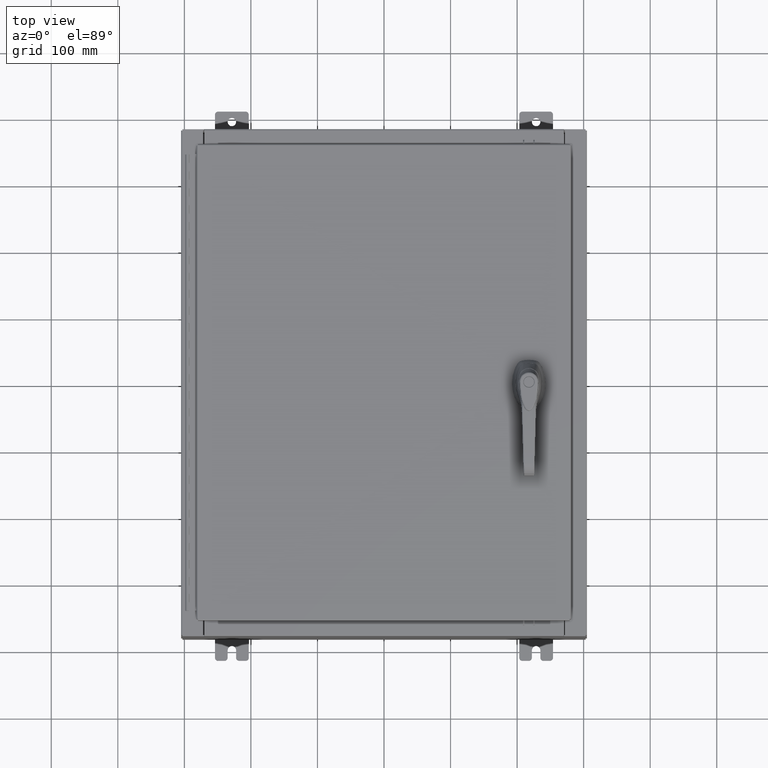
[diagram: clean part render]
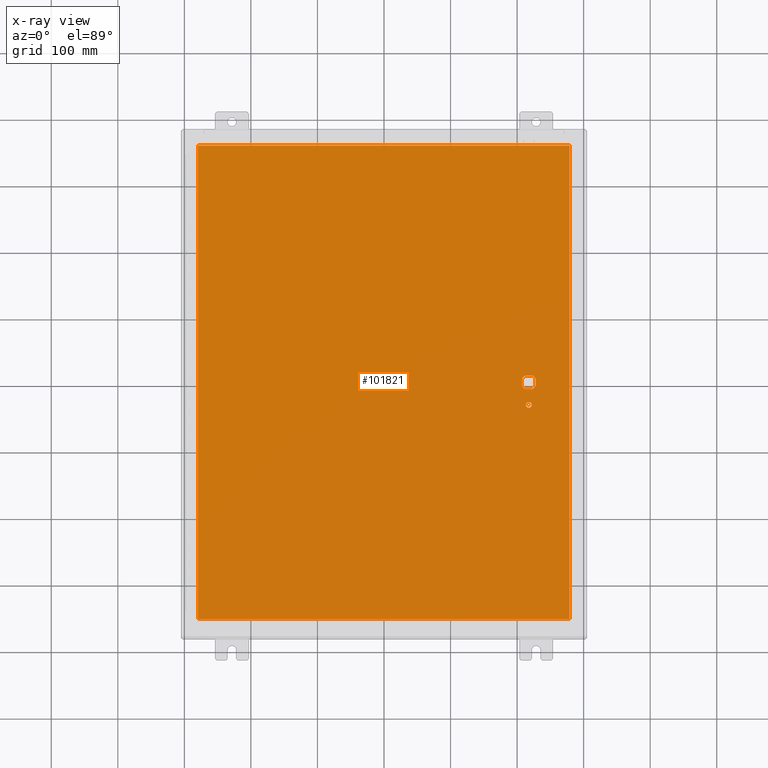
[diagram: x-ray — body ghosted, one internal face saturated and labeled with its STEP entity id]
A machine part, top view, then the same camera in x-ray: the body is ghosted and one INTERNAL B-rep face — a face not visible from any outside direction — is saturated and labeled: STEP entity #101821.
In plain terms, the highlighted planar face has unit normal (0, 0, -1).
Its self-contained STEP definition (entity closure, byte-faithful):
#960 = VERTEX_POINT ( 'NONE', #18982 ) ;
#1404 = VECTOR ( 'NONE', #45254, 39.37007874015748100 ) ;
#1831 = ORIENTED_EDGE ( 'NONE', *, *, #83583, .T. ) ;
#3117 = LINE ( 'NONE', #37283, #73392 ) ;
#4116 = VERTEX_POINT ( 'NONE', #100750 ) ;
#5391 = AXIS2_PLACEMENT_3D ( 'NONE', #76964, #12888, #95352 ) ;
#5726 = CIRCLE ( 'NONE', #71206, 0.4499999999999156900 ) ;
#5945 = CIRCLE ( 'NONE', #49661, 0.4499999999999156900 ) ;
#6752 = LINE ( 'NONE', #21977, #74194 ) ;
#7013 = VECTOR ( 'NONE', #39008, 39.37007874015748100 ) ;
#7109 = AXIS2_PLACEMENT_3D ( 'NONE', #14177, #78276, #23422 ) ;
#8033 = VECTOR ( 'NONE', #34647, 39.37007874015748100 ) ;
#8236 = CARTESIAN_POINT ( 'NONE',  ( -10.99029999999999600, -14.00629999999999800, -0.07470000000000019700 ) ) ;
#9836 = DIRECTION ( 'NONE',  ( 2.728745808672812900E-015, -1.000000000000000000, 0.0000000000000000000 ) ) ;
#10330 = VERTEX_POINT ( 'NONE', #104734 ) ;
#12888 = DIRECTION ( 'NONE',  ( 0.0000000000000000000, 0.0000000000000000000, -1.000000000000000000 ) ) ;
#13919 = CARTESIAN_POINT ( 'NONE',  ( 8.577999999999999400, -1.338000000000000100, -0.07470000000000003000 ) ) ;
#14031 = CARTESIAN_POINT ( 'NONE',  ( 8.749500000000001200, -1.338000000000000100, -0.07470000000000003000 ) ) ;
#14177 = CARTESIAN_POINT ( 'NONE',  ( 8.577999999999999400, 0.0000000000000000000, -0.07470000000000003000 ) ) ;
#16042 = CARTESIAN_POINT ( 'NONE',  ( 8.778227370756310300, -0.4029999999999252000, -0.07470000000000003000 ) ) ;
#16356 = DIRECTION ( 'NONE',  ( -0.0000000000000000000, -0.0000000000000000000, 1.000000000000000000 ) ) ;
#17425 = ORIENTED_EDGE ( 'NONE', *, *, #77079, .T. ) ;
#17771 = EDGE_CURVE ( 'NONE', #10330, #960, #3117, .T. ) ;
#18070 = ORIENTED_EDGE ( 'NONE', *, *, #55538, .T. ) ;
#18982 = CARTESIAN_POINT ( 'NONE',  ( 8.980999999999925300, -0.2002273707563075900, -0.07470000000000003000 ) ) ;
#19429 = ORIENTED_EDGE ( 'NONE', *, *, #17771, .F. ) ;
#19517 = VERTEX_POINT ( 'NONE', #60123 ) ;
#20492 = AXIS2_PLACEMENT_3D ( 'NONE', #96645, #41920, #105854 ) ;
#21496 = DIRECTION ( 'NONE',  ( -0.0000000000000000000, -0.0000000000000000000, 1.000000000000000000 ) ) ;
#21977 = CARTESIAN_POINT ( 'NONE',  ( 0.0000000000000000000, 0.4029999999999252000, -0.07470000000000003000 ) ) ;
#22264 = ORIENTED_EDGE ( 'NONE', *, *, #68138, .T. ) ;
#22397 = AXIS2_PLACEMENT_3D ( 'NONE', #76351, #21496, #85575 ) ;
#22545 = ORIENTED_EDGE ( 'NONE', *, *, #43119, .T. ) ;
#23167 = DIRECTION ( 'NONE',  ( -1.000000000000000000, 0.0000000000000000000, 0.0000000000000000000 ) ) ;
#23422 = DIRECTION ( 'NONE',  ( -1.000000000000000000, 0.0000000000000000000, 0.0000000000000000000 ) ) ;
#24419 = ORIENTED_EDGE ( 'NONE', *, *, #81952, .T. ) ;
#24606 = CARTESIAN_POINT ( 'NONE',  ( 8.175000000000073500, 0.0000000000000000000, -0.07470000000000003000 ) ) ;
#25724 = LINE ( 'NONE', #8236, #1404 ) ;
#25967 = ORIENTED_EDGE ( 'NONE', *, *, #112929, .F. ) ;
#26627 = EDGE_CURVE ( 'NONE', #84531, #4116, #59456, .T. ) ;
#27611 = AXIS2_PLACEMENT_3D ( 'NONE', #13919, #78031, #23167 ) ;
#29296 = FACE_OUTER_BOUND ( 'NONE', #66803, .T. ) ;
#30380 = CARTESIAN_POINT ( 'NONE',  ( -10.99030000000000000, 14.00630000000000100, -0.07470000000000019700 ) ) ;
#31177 = CARTESIAN_POINT ( 'NONE',  ( 10.99030000000000000, -14.00629999999999800, -0.07470000000000000300 ) ) ;
#31347 = PLANE ( 'NONE',  #5391 ) ;
#33371 = CARTESIAN_POINT ( 'NONE',  ( 8.577999999999999400, 0.0000000000000000000, -0.07470000000000003000 ) ) ;
#34647 = DIRECTION ( 'NONE',  ( 1.000000000000000000, 0.0000000000000000000, 0.0000000000000000000 ) ) ;
#34923 = DIRECTION ( 'NONE',  ( 0.0000000000000000000, 1.000000000000000000, 0.0000000000000000000 ) ) ;
#37283 = CARTESIAN_POINT ( 'NONE',  ( 8.980999999999925300, 2.450686610769032800E-014, -0.07470000000000003000 ) ) ;
#39008 = DIRECTION ( 'NONE',  ( -1.000000000000000000, -0.0000000000000000000, -0.0000000000000000000 ) ) ;
#40875 = LINE ( 'NONE', #98914, #83828 ) ;
#41128 = CARTESIAN_POINT ( 'NONE',  ( -10.99030000000000000, 14.00629999999999800, -0.07470000000000000300 ) ) ;
#41920 = DIRECTION ( 'NONE',  ( -0.0000000000000000000, -0.0000000000000000000, 1.000000000000000000 ) ) ;
#42654 = DIRECTION ( 'NONE',  ( -1.000000000000000000, 0.0000000000000000000, 0.0000000000000000000 ) ) ;
#43119 = EDGE_CURVE ( 'NONE', #85819, #62093, #84080, .T. ) ;
#45254 = DIRECTION ( 'NONE',  ( 1.000000000000000000, -0.0000000000000000000, -0.0000000000000000000 ) ) ;
#46235 = LINE ( 'NONE', #30380, #49072 ) ;
#49072 = VECTOR ( 'NONE', #85221, 39.37007874015748100 ) ;
#49323 = VERTEX_POINT ( 'NONE', #69628 ) ;
#49661 = AXIS2_PLACEMENT_3D ( 'NONE', #71309, #16356, #80492 ) ;
#51807 = VERTEX_POINT ( 'NONE', #31177 ) ;
#53667 = FACE_BOUND ( 'NONE', #57179, .T. ) ;
#55486 = ORIENTED_EDGE ( 'NONE', *, *, #26627, .T. ) ;
#55538 = EDGE_CURVE ( 'NONE', #82906, #49323, #6752, .T. ) ;
#57179 = EDGE_LOOP ( 'NONE', ( #24419, #19429, #1831, #18070, #17425, #55486, #71469, #22545 ) ) ;
#57766 = EDGE_CURVE ( 'NONE', #118426, #105731, #46235, .T. ) ;
#58597 = ORIENTED_EDGE ( 'NONE', *, *, #74844, .F. ) ;
#59177 = CARTESIAN_POINT ( 'NONE',  ( 10.99030000000000000, 14.00629999999999800, -0.07470000000000000300 ) ) ;
#59456 = LINE ( 'NONE', #24606, #105231 ) ;
#60123 = CARTESIAN_POINT ( 'NONE',  ( 8.406499999999999400, -1.338000000000000100, -0.07470000000000003000 ) ) ;
#61416 = EDGE_LOOP ( 'NONE', ( #22264, #68704 ) ) ;
#62093 = VERTEX_POINT ( 'NONE', #16042 ) ;
#64093 = CARTESIAN_POINT ( 'NONE',  ( 8.778227370756310300, 0.4029999999999250300, -0.07470000000000003000 ) ) ;
#64605 = CIRCLE ( 'NONE', #22397, 0.4499999999999156900 ) ;
#66803 = EDGE_LOOP ( 'NONE', ( #25967, #104928, #86027, #58597 ) ) ;
#68138 = EDGE_CURVE ( 'NONE', #96726, #19517, #101896, .T. ) ;
#68704 = ORIENTED_EDGE ( 'NONE', *, *, #116023, .T. ) ;
#69628 = CARTESIAN_POINT ( 'NONE',  ( 8.377772629243690300, 0.4029999999999252000, -0.07470000000000003000 ) ) ;
#69916 = EDGE_CURVE ( 'NONE', #105731, #51807, #25724, .T. ) ;
#70193 = CARTESIAN_POINT ( 'NONE',  ( -10.99030000000000000, -14.00629999999999600, -0.07470000000000000300 ) ) ;
#71206 = AXIS2_PLACEMENT_3D ( 'NONE', #33371, #97363, #42654 ) ;
#71309 = CARTESIAN_POINT ( 'NONE',  ( 8.577999999999999400, 0.0000000000000000000, -0.07470000000000003000 ) ) ;
#71469 = ORIENTED_EDGE ( 'NONE', *, *, #104996, .T. ) ;
#73392 = VECTOR ( 'NONE', #9836, 39.37007874015748100 ) ;
#74194 = VECTOR ( 'NONE', #104449, 39.37007874015748100 ) ;
#74844 = EDGE_CURVE ( 'NONE', #110804, #118426, #101642, .T. ) ;
#76351 = CARTESIAN_POINT ( 'NONE',  ( 8.577999999999999400, 0.0000000000000000000, -0.07470000000000003000 ) ) ;
#76964 = CARTESIAN_POINT ( 'NONE',  ( 0.0000000000000000000, 0.0000000000000000000, -0.07470000000000000300 ) ) ;
#77079 = EDGE_CURVE ( 'NONE', #49323, #84531, #85559, .T. ) ;
#77918 = CIRCLE ( 'NONE', #27611, 0.1715000000000011500 ) ;
#78031 = DIRECTION ( 'NONE',  ( -0.0000000000000000000, -0.0000000000000000000, 1.000000000000000000 ) ) ;
#78276 = DIRECTION ( 'NONE',  ( -0.0000000000000000000, -0.0000000000000000000, 1.000000000000000000 ) ) ;
#80492 = DIRECTION ( 'NONE',  ( -1.000000000000000000, 1.776356839400251300E-015, 0.0000000000000000000 ) ) ;
#81952 = EDGE_CURVE ( 'NONE', #62093, #960, #5945, .T. ) ;
#82906 = VERTEX_POINT ( 'NONE', #64093 ) ;
#83583 = EDGE_CURVE ( 'NONE', #10330, #82906, #5726, .T. ) ;
#83828 = VECTOR ( 'NONE', #34923, 39.37007874015748100 ) ;
#84080 = LINE ( 'NONE', #107460, #8033 ) ;
#84531 = VERTEX_POINT ( 'NONE', #94327 ) ;
#85221 = DIRECTION ( 'NONE',  ( 0.0000000000000000000, -1.000000000000000000, 0.0000000000000000000 ) ) ;
#85559 = CIRCLE ( 'NONE', #7109, 0.4499999999999156900 ) ;
#85575 = DIRECTION ( 'NONE',  ( -1.000000000000000000, 8.881784197001256300E-016, 0.0000000000000000000 ) ) ;
#85819 = VERTEX_POINT ( 'NONE', #109885 ) ;
#86027 = ORIENTED_EDGE ( 'NONE', *, *, #57766, .F. ) ;
#93705 = CARTESIAN_POINT ( 'NONE',  ( 10.99030000000000000, 14.00629999999999800, -0.07470000000000019700 ) ) ;
#94327 = CARTESIAN_POINT ( 'NONE',  ( 8.175000000000073500, 0.2002273707563080300, -0.07470000000000003000 ) ) ;
#95352 = DIRECTION ( 'NONE',  ( -1.000000000000000000, 0.0000000000000000000, -0.0000000000000000000 ) ) ;
#96645 = CARTESIAN_POINT ( 'NONE',  ( 8.577999999999999400, -1.338000000000000100, -0.07470000000000003000 ) ) ;
#96726 = VERTEX_POINT ( 'NONE', #14031 ) ;
#97363 = DIRECTION ( 'NONE',  ( -0.0000000000000000000, -0.0000000000000000000, 1.000000000000000000 ) ) ;
#98914 = CARTESIAN_POINT ( 'NONE',  ( 10.99030000000000000, -14.00629999999999800, -0.07470000000000019700 ) ) ;
#99431 = FACE_BOUND ( 'NONE', #61416, .T. ) ;
#100750 = CARTESIAN_POINT ( 'NONE',  ( 8.175000000000073500, -0.2002273707563079800, -0.07470000000000003000 ) ) ;
#101642 = LINE ( 'NONE', #93705, #7013 ) ;
#101821 = ADVANCED_FACE ( 'NONE', ( #99431, #29296, #53667 ), #31347, .T. ) ;
#101896 = CIRCLE ( 'NONE', #20492, 0.1715000000000011500 ) ;
#104449 = DIRECTION ( 'NONE',  ( -1.000000000000000000, 0.0000000000000000000, 0.0000000000000000000 ) ) ;
#104734 = CARTESIAN_POINT ( 'NONE',  ( 8.980999999999925300, 0.2002273707563080300, -0.07470000000000003000 ) ) ;
#104928 = ORIENTED_EDGE ( 'NONE', *, *, #69916, .F. ) ;
#104996 = EDGE_CURVE ( 'NONE', #4116, #85819, #64605, .T. ) ;
#105231 = VECTOR ( 'NONE', #116260, 39.37007874015748100 ) ;
#105731 = VERTEX_POINT ( 'NONE', #70193 ) ;
#105854 = DIRECTION ( 'NONE',  ( -1.000000000000000000, 0.0000000000000000000, 0.0000000000000000000 ) ) ;
#107460 = CARTESIAN_POINT ( 'NONE',  ( 0.0000000000000000000, -0.4029999999999252000, -0.07470000000000003000 ) ) ;
#109885 = CARTESIAN_POINT ( 'NONE',  ( 8.377772629243690300, -0.4029999999999250300, -0.07470000000000003000 ) ) ;
#110804 = VERTEX_POINT ( 'NONE', #59177 ) ;
#112929 = EDGE_CURVE ( 'NONE', #51807, #110804, #40875, .T. ) ;
#116023 = EDGE_CURVE ( 'NONE', #19517, #96726, #77918, .T. ) ;
#116260 = DIRECTION ( 'NONE',  ( 0.0000000000000000000, -1.000000000000000000, 0.0000000000000000000 ) ) ;
#118426 = VERTEX_POINT ( 'NONE', #41128 ) ;